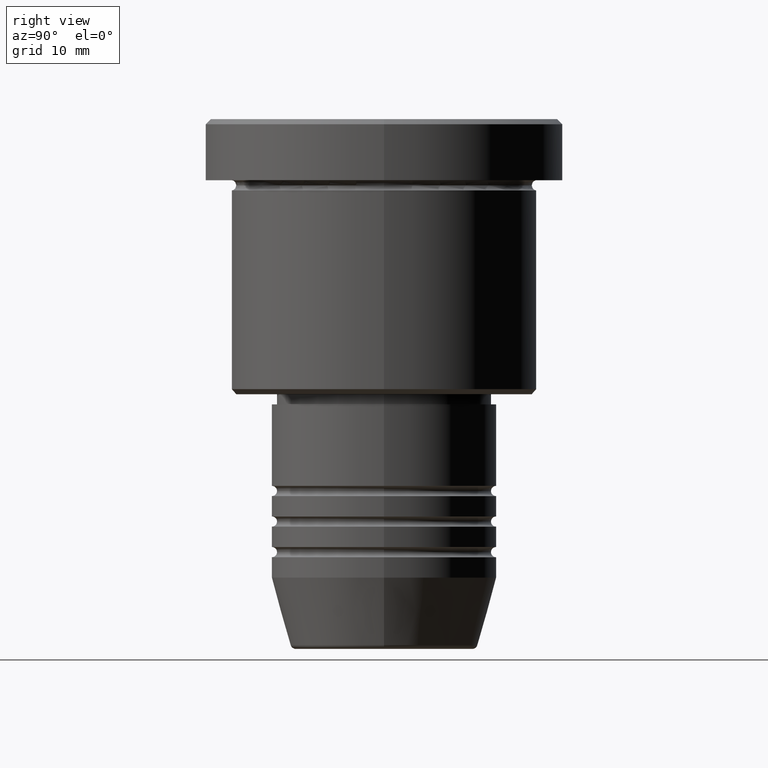
[diagram: clean part render]
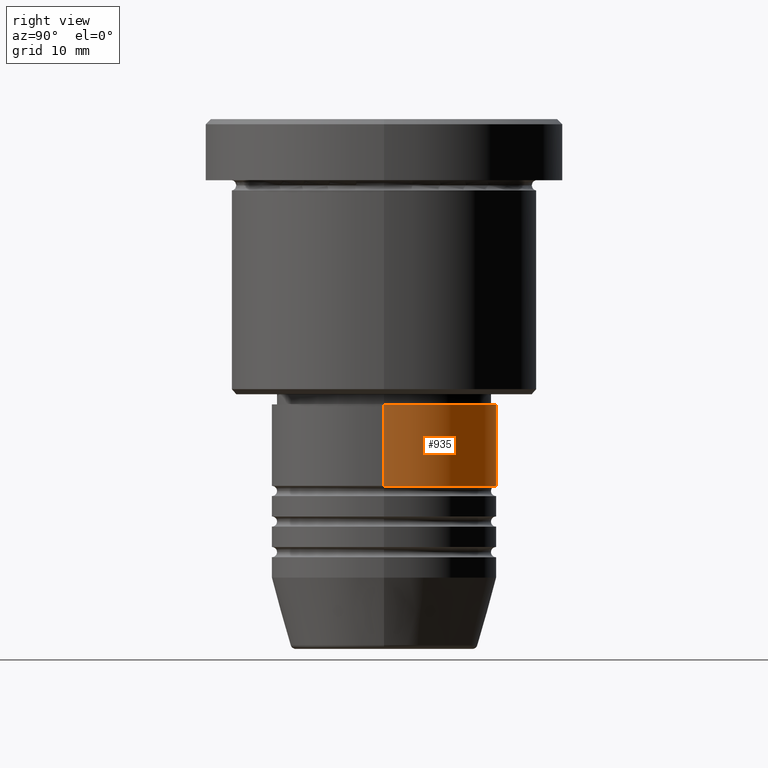
[diagram: same view with one face highlighted and labeled with its STEP entity id]
A machine part, right view. The second image highlights one B-rep face of the part: STEP entity #935.
In plain terms, the highlighted cylindrical surface (partial cylindrical patch) has radius 11 mm, axis along (-0, -0, 1).
Its self-contained STEP definition (entity closure, byte-faithful):
#1 = DIRECTION ( 'NONE',  ( 1.000000000000000000, 0.000000000000000000, 0.000000000000000000 ) ) ;
#7 = CIRCLE ( 'NONE', #704, 11.00000000000000000 ) ;
#38 = ORIENTED_EDGE ( 'NONE', *, *, #693, .F. ) ;
#64 = DIRECTION ( 'NONE',  ( -0.000000000000000000, -0.000000000000000000, 1.000000000000000000 ) ) ;
#71 = CARTESIAN_POINT ( 'NONE',  ( -11.00000000000000000, 1.347111479062088405E-15, 0.000000000000000000 ) ) ;
#121 = CARTESIAN_POINT ( 'NONE',  ( -11.00000000000000000, 1.347111479062088405E-15, -35.99999999999997868 ) ) ;
#179 = FACE_OUTER_BOUND ( 'NONE', #770, .T. ) ;
#185 = DIRECTION ( 'NONE',  ( -0.000000000000000000, -0.000000000000000000, 1.000000000000000000 ) ) ;
#261 = CYLINDRICAL_SURFACE ( 'NONE', #993, 11.00000000000000000 ) ;
#330 = DIRECTION ( 'NONE',  ( 1.000000000000000000, 0.000000000000000000, 0.000000000000000000 ) ) ;
#383 = LINE ( 'NONE', #953, #823 ) ;
#396 = CARTESIAN_POINT ( 'NONE',  ( 0.000000000000000000, 0.000000000000000000, -35.99999999999997868 ) ) ;
#419 = CARTESIAN_POINT ( 'NONE',  ( 0.000000000000000000, 0.000000000000000000, -27.99999999999999645 ) ) ;
#668 = AXIS2_PLACEMENT_3D ( 'NONE', #396, #1120, #945 ) ;
#693 = EDGE_CURVE ( 'NONE', #824, #860, #383, .T. ) ;
#704 = AXIS2_PLACEMENT_3D ( 'NONE', #419, #1163, #330 ) ;
#729 = ORIENTED_EDGE ( 'NONE', *, *, #1121, .T. ) ;
#751 = VERTEX_POINT ( 'NONE', #121 ) ;
#770 = EDGE_LOOP ( 'NONE', ( #729, #1148, #954, #38 ) ) ;
#799 = EDGE_CURVE ( 'NONE', #751, #1053, #975, .T. ) ;
#815 = EDGE_CURVE ( 'NONE', #860, #1053, #7, .T. ) ;
#823 = VECTOR ( 'NONE', #925, 1000.000000000000000 ) ;
#824 = VERTEX_POINT ( 'NONE', #885 ) ;
#860 = VERTEX_POINT ( 'NONE', #1152 ) ;
#885 = CARTESIAN_POINT ( 'NONE',  ( 11.00000000000000000, 0.000000000000000000, -35.99999999999997868 ) ) ;
#899 = VECTOR ( 'NONE', #64, 1000.000000000000000 ) ;
#925 = DIRECTION ( 'NONE',  ( -0.000000000000000000, -0.000000000000000000, 1.000000000000000000 ) ) ;
#935 = ADVANCED_FACE ( 'NONE', ( #179 ), #261, .T. ) ;
#945 = DIRECTION ( 'NONE',  ( 1.000000000000000000, 0.000000000000000000, 0.000000000000000000 ) ) ;
#953 = CARTESIAN_POINT ( 'NONE',  ( 11.00000000000000000, 0.000000000000000000, 0.000000000000000000 ) ) ;
#954 = ORIENTED_EDGE ( 'NONE', *, *, #815, .F. ) ;
#963 = CIRCLE ( 'NONE', #668, 11.00000000000000000 ) ;
#975 = LINE ( 'NONE', #71, #899 ) ;
#993 = AXIS2_PLACEMENT_3D ( 'NONE', #1175, #185, #1 ) ;
#1005 = CARTESIAN_POINT ( 'NONE',  ( -11.00000000000000000, 1.347111479062088405E-15, -27.99999999999999645 ) ) ;
#1053 = VERTEX_POINT ( 'NONE', #1005 ) ;
#1120 = DIRECTION ( 'NONE',  ( -0.000000000000000000, -0.000000000000000000, 1.000000000000000000 ) ) ;
#1121 = EDGE_CURVE ( 'NONE', #824, #751, #963, .T. ) ;
#1148 = ORIENTED_EDGE ( 'NONE', *, *, #799, .T. ) ;
#1152 = CARTESIAN_POINT ( 'NONE',  ( 11.00000000000000000, 0.000000000000000000, -27.99999999999999645 ) ) ;
#1163 = DIRECTION ( 'NONE',  ( -0.000000000000000000, -0.000000000000000000, 1.000000000000000000 ) ) ;
#1175 = CARTESIAN_POINT ( 'NONE',  ( 0.000000000000000000, 0.000000000000000000, 0.000000000000000000 ) ) ;